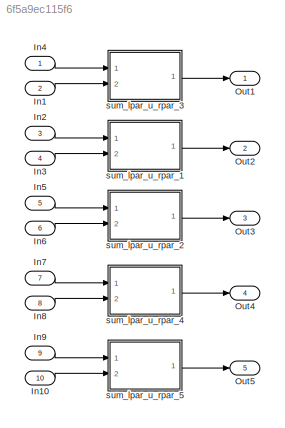
MODEL slx_6f5a9ec115f6
KIND model
CONFIG AbsTol = auto
CONFIG EnableMultiTasking = off
CONFIG FixedStep = 0.100000
CONFIG MaxStep = auto
CONFIG MinStep = auto
CONFIG RelTol = 1e-3
CONFIG SampleTimeConstraint = Unconstrained
CONFIG SolverName = FixedStepDiscrete
CONFIG StartTime = 0.0
CONFIG StopTime = 10.0
WORKSPACE source: mxarray member
WORKSPACE already_pp = 1
BLOCK [Inport] In1
  OutDataTypeStr = double
  Port = 2
  PortDimensions = [2 3]
BLOCK [Inport] In10
  OutDataTypeStr = double
  Port = 10
  PortDimensions = [2 3]
BLOCK [Inport] In2
  OutDataTypeStr = double
  Port = 3
  PortDimensions = [2 3]
BLOCK [Inport] In3
  OutDataTypeStr = double
  Port = 4
  PortDimensions = [2 3]
BLOCK [Inport] In4
  OutDataTypeStr = double
  PortDimensions = [2 3]
BLOCK [Inport] In5
  OutDataTypeStr = double
  Port = 5
  PortDimensions = [2 3]
BLOCK [Inport] In6
  OutDataTypeStr = double
  Port = 6
  PortDimensions = [2 3]
BLOCK [Inport] In7
  OutDataTypeStr = double
  Port = 7
  PortDimensions = [2 3]
BLOCK [Inport] In8
  OutDataTypeStr = double
  Port = 8
  PortDimensions = [2 3]
BLOCK [Inport] In9
  OutDataTypeStr = double
  Port = 9
  PortDimensions = [2 3]
BLOCK [Outport] Out1
  VectorParamsAs1DForOutWhenUnconnected = off
BLOCK [Outport] Out2
  Port = 2
  VectorParamsAs1DForOutWhenUnconnected = off
BLOCK [Outport] Out3
  Port = 3
  VectorParamsAs1DForOutWhenUnconnected = off
BLOCK [Outport] Out4
  Port = 4
  VectorParamsAs1DForOutWhenUnconnected = off
BLOCK [Outport] Out5
  Port = 5
  VectorParamsAs1DForOutWhenUnconnected = off
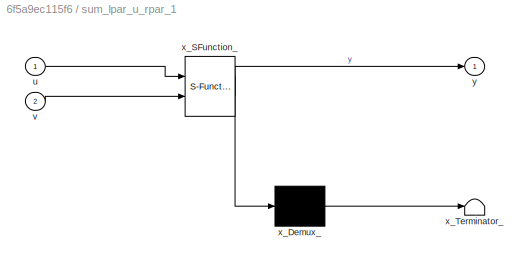
BLOCK [SubSystem] sum_lpar_u_rpar_1
  ErrorFcn = Stateflow.Translate.translate
  PermitHierarchicalResolution = ExplicitOnly
  Ports = [2, 1]
  RequestExecContextInheritance = off
  SFBlockType = MATLAB Function
  TreatAsAtomicUnit = on
BLOCK [Inport] sum_lpar_u_rpar_1/u
BLOCK [Inport] sum_lpar_u_rpar_1/v
  Port = 2
BLOCK [Demux] sum_lpar_u_rpar_1/x_Demux_
  Outputs = 1
  Ports = [1, 1]
BLOCK [S-Function] sum_lpar_u_rpar_1/x_SFunction_
  EnableBusSupport = on
  FunctionName = sf_sfun
  PortCounts = [2 2]
  Ports = [2, 2]
  SFcnIsStateOwnerBlock = off
  SFunctionDeploymentMode = off
  Tag = Stateflow S-Function 1
BLOCK [Terminator] sum_lpar_u_rpar_1/x_Terminator_
BLOCK [Outport] sum_lpar_u_rpar_1/y
  VectorParamsAs1DForOutWhenUnconnected = off
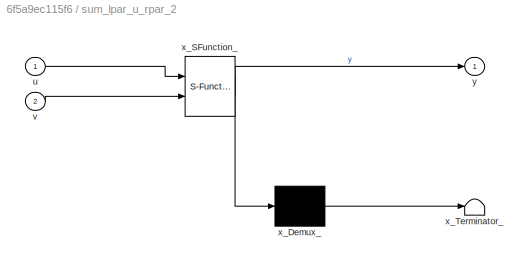
BLOCK [SubSystem] sum_lpar_u_rpar_2
  ErrorFcn = Stateflow.Translate.translate
  PermitHierarchicalResolution = ExplicitOnly
  Ports = [2, 1]
  RequestExecContextInheritance = off
  SFBlockType = MATLAB Function
  TreatAsAtomicUnit = on
BLOCK [Inport] sum_lpar_u_rpar_2/u
BLOCK [Inport] sum_lpar_u_rpar_2/v
  Port = 2
BLOCK [Demux] sum_lpar_u_rpar_2/x_Demux_
  Outputs = 1
  Ports = [1, 1]
BLOCK [S-Function] sum_lpar_u_rpar_2/x_SFunction_
  EnableBusSupport = on
  FunctionName = sf_sfun
  PortCounts = [2 2]
  Ports = [2, 2]
  SFcnIsStateOwnerBlock = off
  SFunctionDeploymentMode = off
  Tag = Stateflow S-Function 2
BLOCK [Terminator] sum_lpar_u_rpar_2/x_Terminator_
BLOCK [Outport] sum_lpar_u_rpar_2/y
  VectorParamsAs1DForOutWhenUnconnected = off
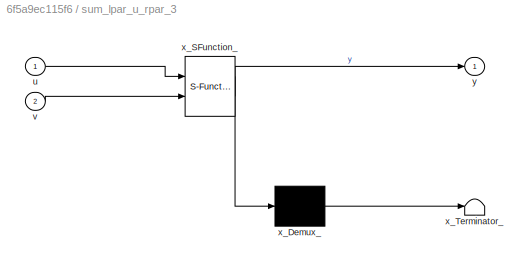
BLOCK [SubSystem] sum_lpar_u_rpar_3
  ErrorFcn = Stateflow.Translate.translate
  PermitHierarchicalResolution = ExplicitOnly
  Ports = [2, 1]
  RequestExecContextInheritance = off
  SFBlockType = MATLAB Function
  TreatAsAtomicUnit = on
BLOCK [Inport] sum_lpar_u_rpar_3/u
BLOCK [Inport] sum_lpar_u_rpar_3/v
  Port = 2
BLOCK [Demux] sum_lpar_u_rpar_3/x_Demux_
  Outputs = 1
  Ports = [1, 1]
BLOCK [S-Function] sum_lpar_u_rpar_3/x_SFunction_
  EnableBusSupport = on
  FunctionName = sf_sfun
  PortCounts = [2 2]
  Ports = [2, 2]
  SFcnIsStateOwnerBlock = off
  SFunctionDeploymentMode = off
  Tag = Stateflow S-Function 3
BLOCK [Terminator] sum_lpar_u_rpar_3/x_Terminator_
BLOCK [Outport] sum_lpar_u_rpar_3/y
  VectorParamsAs1DForOutWhenUnconnected = off
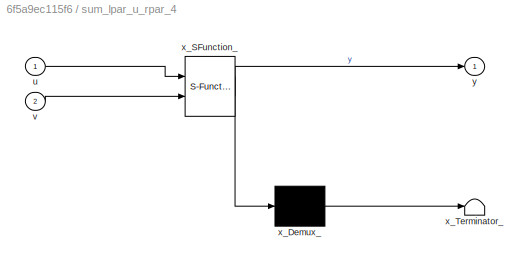
BLOCK [SubSystem] sum_lpar_u_rpar_4
  ErrorFcn = Stateflow.Translate.translate
  PermitHierarchicalResolution = ExplicitOnly
  Ports = [2, 1]
  RequestExecContextInheritance = off
  SFBlockType = MATLAB Function
  TreatAsAtomicUnit = on
BLOCK [Inport] sum_lpar_u_rpar_4/u
BLOCK [Inport] sum_lpar_u_rpar_4/v
  Port = 2
BLOCK [Demux] sum_lpar_u_rpar_4/x_Demux_
  Outputs = 1
  Ports = [1, 1]
BLOCK [S-Function] sum_lpar_u_rpar_4/x_SFunction_
  EnableBusSupport = on
  FunctionName = sf_sfun
  PortCounts = [2 2]
  Ports = [2, 2]
  SFcnIsStateOwnerBlock = off
  SFunctionDeploymentMode = off
  Tag = Stateflow S-Function 4
BLOCK [Terminator] sum_lpar_u_rpar_4/x_Terminator_
BLOCK [Outport] sum_lpar_u_rpar_4/y
  VectorParamsAs1DForOutWhenUnconnected = off
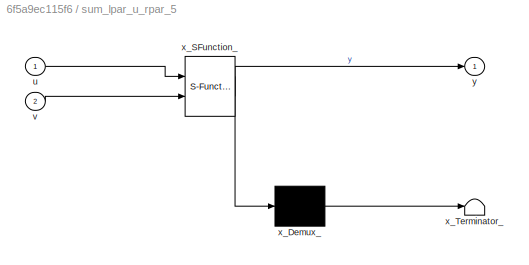
BLOCK [SubSystem] sum_lpar_u_rpar_5
  ErrorFcn = Stateflow.Translate.translate
  PermitHierarchicalResolution = ExplicitOnly
  Ports = [2, 1]
  RequestExecContextInheritance = off
  SFBlockType = MATLAB Function
  TreatAsAtomicUnit = on
BLOCK [Inport] sum_lpar_u_rpar_5/u
BLOCK [Inport] sum_lpar_u_rpar_5/v
  Port = 2
BLOCK [Demux] sum_lpar_u_rpar_5/x_Demux_
  Outputs = 1
  Ports = [1, 1]
BLOCK [S-Function] sum_lpar_u_rpar_5/x_SFunction_
  EnableBusSupport = on
  FunctionName = sf_sfun
  PortCounts = [2 2]
  Ports = [2, 2]
  SFcnIsStateOwnerBlock = off
  SFunctionDeploymentMode = off
  Tag = Stateflow S-Function 5
BLOCK [Terminator] sum_lpar_u_rpar_5/x_Terminator_
BLOCK [Outport] sum_lpar_u_rpar_5/y
  VectorParamsAs1DForOutWhenUnconnected = off
LINE In10:1 -> sum_lpar_u_rpar_5:2
LINE In1:1 -> sum_lpar_u_rpar_3:2
LINE In2:1 -> sum_lpar_u_rpar_1:1
LINE In3:1 -> sum_lpar_u_rpar_1:2
LINE In4:1 -> sum_lpar_u_rpar_3:1
LINE In5:1 -> sum_lpar_u_rpar_2:1
LINE In6:1 -> sum_lpar_u_rpar_2:2
LINE In7:1 -> sum_lpar_u_rpar_4:1
LINE In8:1 -> sum_lpar_u_rpar_4:2
LINE In9:1 -> sum_lpar_u_rpar_5:1
LINE sum_lpar_u_rpar_1:1 -> Out2:1
LINE sum_lpar_u_rpar_2:1 -> Out3:1
LINE sum_lpar_u_rpar_3:1 -> Out1:1
LINE sum_lpar_u_rpar_4:1 -> Out4:1
LINE sum_lpar_u_rpar_5:1 -> Out5:1
CHART sum_lpar_u_rpar_2 states=1 transitions=1
  STATE_LABEL 'eML_blk_kernel()'
  STATE_LABEL 'SCRIPT:\nfunction y = xor1(u, v)\n\ny = xor(u, v);\n'
CHART sum_lpar_u_rpar_3 states=1 transitions=1
  STATE_LABEL 'eML_blk_kernel()'
  STATE_LABEL 'SCRIPT:\nfunction y = or1(u, v)\n\ny = or(u, v);\n'
CHART sum_lpar_u_rpar_4 states=1 transitions=1
  STATE_LABEL 'eML_blk_kernel()'
  STATE_LABEL 'SCRIPT:\nfunction y = plus1(u, v)\n\ny = plus(u, v);\n'
CHART sum_lpar_u_rpar_5 states=1 transitions=1
  STATE_LABEL 'eML_blk_kernel()'
  STATE_LABEL 'SCRIPT:\nfunction y = minus1(u, v)\n\ny = minus(u, v);\n'
CHART sum_lpar_u_rpar_1 states=1 transitions=1
  STATE_LABEL 'eML_blk_kernel()'
  STATE_LABEL 'SCRIPT:\nfunction y = and1(u, v)\n\ny = and(u, v);\n'
CHART  states=0 transitions=0
CHART  states=0 transitions=0
CHART  states=0 transitions=0
CHART  states=0 transitions=0
CHART  states=0 transitions=0
